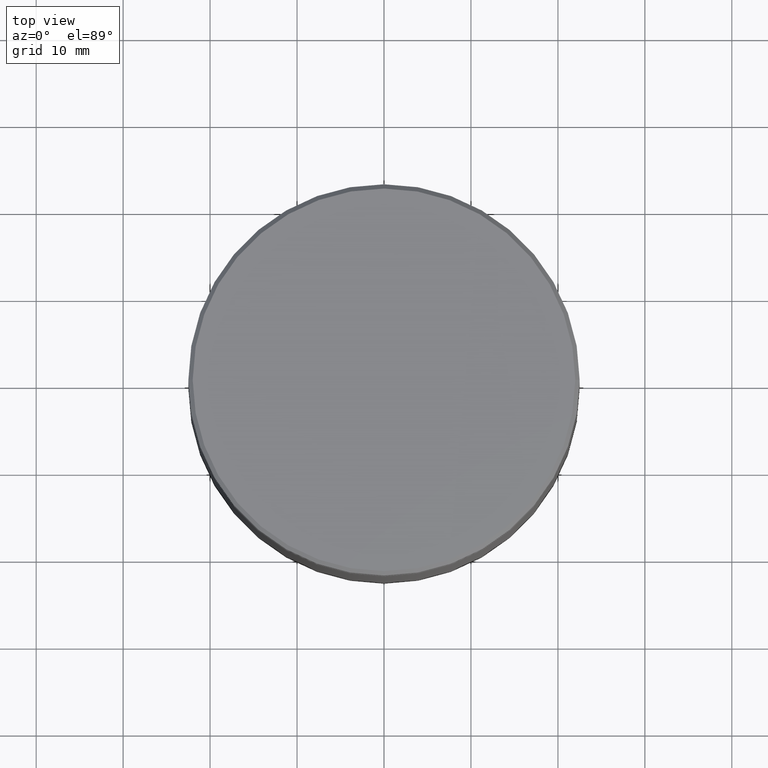
[diagram: clean part render]
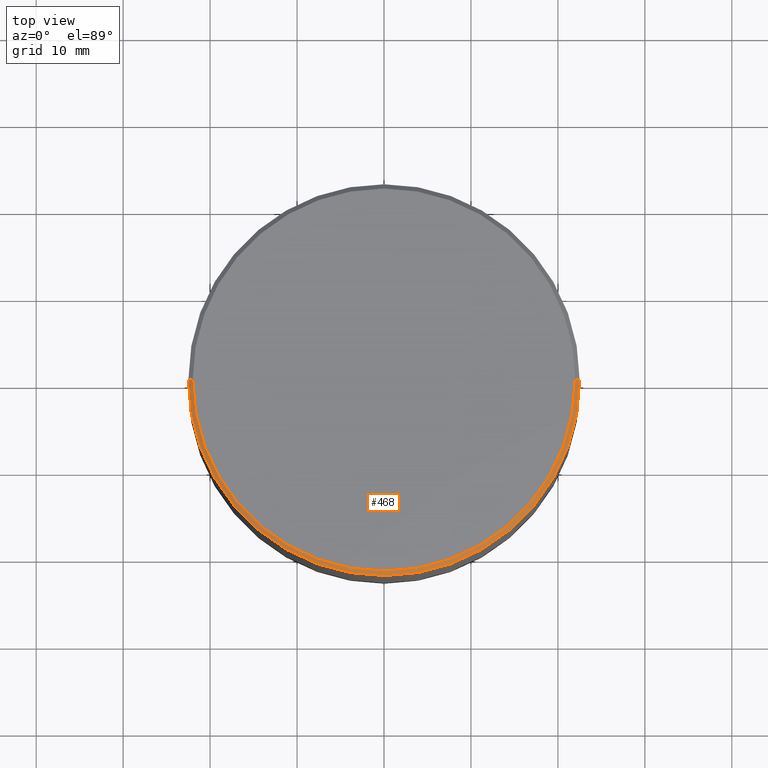
[diagram: same view with one face highlighted and labeled with its STEP entity id]
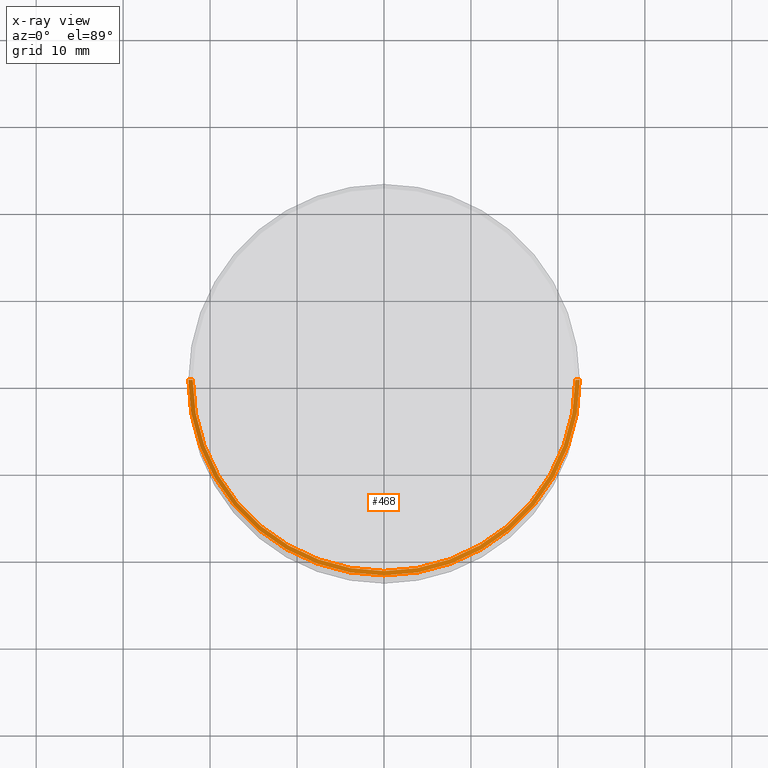
[diagram: x-ray of the same camera — body ghosted, the highlighted face saturated]
A machine part, top view. The second image highlights one B-rep face of the part: STEP entity #468.
The next image is the same camera in x-ray: the body ghosted, the highlighted face saturated — about 0% of this face is hidden behind the body in this view.
In plain terms, the highlighted conical surface has half-angle 45 deg.
Its self-contained STEP definition (entity closure, byte-faithful):
#2 = CARTESIAN_POINT ( 'NONE',  ( 0.000000000000000000, 0.000000000000000000, 0.000000000000000000 ) ) ;
#51 = CARTESIAN_POINT ( 'NONE',  ( 21.99999999999998579, 2.724839128102860202E-15, 0.000000000000000000 ) ) ;
#74 = AXIS2_PLACEMENT_3D ( 'NONE', #154, #197, #561 ) ;
#79 = EDGE_CURVE ( 'NONE', #559, #434, #192, .T. ) ;
#81 = LINE ( 'NONE', #292, #450 ) ;
#104 = ORIENTED_EDGE ( 'NONE', *, *, #465, .F. ) ;
#121 = DIRECTION ( 'NONE',  ( 0.000000000000000000, 0.000000000000000000, -1.000000000000000000 ) ) ;
#127 = CARTESIAN_POINT ( 'NONE',  ( 22.50000000000000000, 0.000000000000000000, -0.5000000000000212053 ) ) ;
#144 = CARTESIAN_POINT ( 'NONE',  ( -21.99999999999998579, 0.000000000000000000, 0.000000000000000000 ) ) ;
#150 = DIRECTION ( 'NONE',  ( -1.000000000000000000, 0.000000000000000000, 0.000000000000000000 ) ) ;
#154 = CARTESIAN_POINT ( 'NONE',  ( 0.000000000000000000, 0.000000000000000000, -0.5000000000000212053 ) ) ;
#192 = LINE ( 'NONE', #378, #375 ) ;
#197 = DIRECTION ( 'NONE',  ( 0.000000000000000000, 0.000000000000000000, -1.000000000000000000 ) ) ;
#292 = CARTESIAN_POINT ( 'NONE',  ( 21.99999999999998579, 2.694222958124175232E-15, 0.000000000000000000 ) ) ;
#293 = VERTEX_POINT ( 'NONE', #127 ) ;
#319 = DIRECTION ( 'NONE',  ( 1.000000000000000000, 0.000000000000000000, 0.000000000000000000 ) ) ;
#350 = EDGE_CURVE ( 'NONE', #559, #557, #352, .T. ) ;
#352 = CIRCLE ( 'NONE', #458, 21.99999999999998579 ) ;
#358 = DIRECTION ( 'NONE',  ( -0.000000000000000000, -0.000000000000000000, 1.000000000000000000 ) ) ;
#359 = AXIS2_PLACEMENT_3D ( 'NONE', #431, #121, #150 ) ;
#375 = VECTOR ( 'NONE', #548, 1000.000000000000000 ) ;
#378 = CARTESIAN_POINT ( 'NONE',  ( -21.99999999999998579, 0.000000000000000000, 0.000000000000000000 ) ) ;
#408 = EDGE_LOOP ( 'NONE', ( #514, #437, #440, #104 ) ) ;
#431 = CARTESIAN_POINT ( 'NONE',  ( 0.000000000000000000, 0.000000000000000000, 0.000000000000000000 ) ) ;
#434 = VERTEX_POINT ( 'NONE', #497 ) ;
#437 = ORIENTED_EDGE ( 'NONE', *, *, #350, .F. ) ;
#439 = CONICAL_SURFACE ( 'NONE', #359, 21.99999999999998579, 0.7853981633974415066 ) ;
#440 = ORIENTED_EDGE ( 'NONE', *, *, #79, .T. ) ;
#450 = VECTOR ( 'NONE', #509, 1000.000000000000000 ) ;
#458 = AXIS2_PLACEMENT_3D ( 'NONE', #2, #358, #319 ) ;
#465 = EDGE_CURVE ( 'NONE', #293, #434, #534, .T. ) ;
#468 = ADVANCED_FACE ( 'NONE', ( #515 ), #439, .T. ) ;
#472 = EDGE_CURVE ( 'NONE', #557, #293, #81, .T. ) ;
#497 = CARTESIAN_POINT ( 'NONE',  ( -22.50000000000000000, 2.755455298081544778E-15, -0.5000000000000212053 ) ) ;
#509 = DIRECTION ( 'NONE',  ( 0.7071067811865426878, 8.659560562354874926E-17, -0.7071067811865524577 ) ) ;
#514 = ORIENTED_EDGE ( 'NONE', *, *, #472, .F. ) ;
#515 = FACE_OUTER_BOUND ( 'NONE', #408, .T. ) ;
#534 = CIRCLE ( 'NONE', #74, 22.50000000000000000 ) ;
#548 = DIRECTION ( 'NONE',  ( -0.7071067811865426878, 0.000000000000000000, -0.7071067811865524577 ) ) ;
#557 = VERTEX_POINT ( 'NONE', #51 ) ;
#559 = VERTEX_POINT ( 'NONE', #144 ) ;
#561 = DIRECTION ( 'NONE',  ( 1.000000000000000000, 0.000000000000000000, 0.000000000000000000 ) ) ;